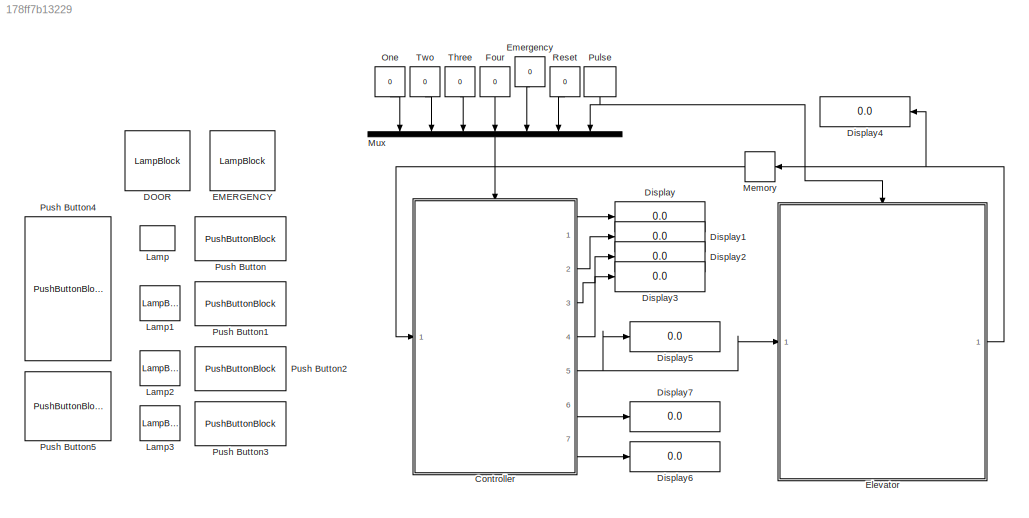
MODEL slx_178ff7b13229
KIND model
CONFIG AbsTol = auto
CONFIG EnableMultiTasking = off
CONFIG FixedStep = auto
CONFIG MaxStep = auto
CONFIG MinStep = auto
CONFIG RelTol = 1e-3
CONFIG SampleTimeConstraint = Unconstrained
CONFIG Solver = VariableStepAuto
CONFIG SolverName = VariableStepAuto
CONFIG StartTime = 0.0
CONFIG StopTime = inf
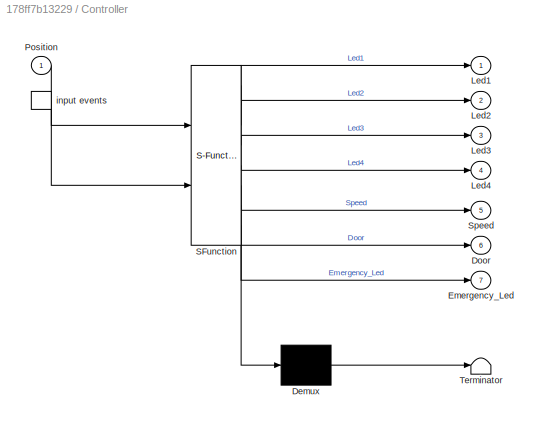
BLOCK [SubSystem] Controller
  ErrorFcn = Stateflow.Translate.translate
  PermitHierarchicalResolution = ExplicitOnly
  Ports = [1, 7, 0, 1]
  RequestExecContextInheritance = off
  SFBlockType = Chart
  TreatAsAtomicUnit = on
BLOCK [Demux] Controller/ Demux 
  Outputs = 1
  Ports = [1, 1]
BLOCK [S-Function] Controller/ SFunction 
  EnableBusSupport = on
  FunctionName = sf_sfun
  PortCounts = [2 8]
  Ports = [2, 8]
  SFcnIsStateOwnerBlock = off
  SFunctionDeploymentMode = off
  Tag = Stateflow S-Function 3
BLOCK [Terminator] Controller/ Terminator 
BLOCK [Outport] Controller/Door
  Port = 6
BLOCK [Outport] Controller/Emergency_Led
  Port = 7
BLOCK [Outport] Controller/Led1
BLOCK [Outport] Controller/Led2
  Port = 2
BLOCK [Outport] Controller/Led3
  Port = 3
BLOCK [Outport] Controller/Led4
  Port = 4
BLOCK [Inport] Controller/Position
BLOCK [Outport] Controller/Speed
  Port = 5
BLOCK [TriggerPort] Controller/input events
  Ports = [0, 1]
  ShowOutputPort = on
  StatesWhenEnabling = held
  VariantControl = (inherit)
BLOCK [LampBlock] DOOR
BLOCK [Display] Display
  Decimation = 1
  Ports = [1]
BLOCK [Display] Display1
  Decimation = 1
  Ports = [1]
BLOCK [Display] Display2
  Decimation = 1
  Ports = [1]
BLOCK [Display] Display3
  Decimation = 1
  Ports = [1]
BLOCK [Display] Display4
  Decimation = 1
  NameLocation = top
  Ports = [1]
BLOCK [Display] Display5
  Decimation = 1
  Ports = [1]
BLOCK [Display] Display6
  Decimation = 1
  Ports = [1]
BLOCK [Display] Display7
  Decimation = 1
  Ports = [1]
BLOCK [LampBlock] EMERGENCY
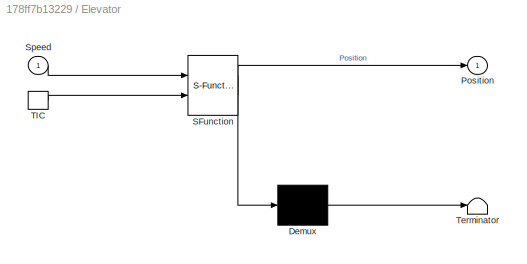
BLOCK [SubSystem] Elevator
  ErrorFcn = Stateflow.Translate.translate
  PermitHierarchicalResolution = ExplicitOnly
  Ports = [1, 1, 0, 1]
  RequestExecContextInheritance = off
  SFBlockType = Chart
  TreatAsAtomicUnit = on
BLOCK [Demux] Elevator/ Demux 
  Outputs = 1
  Ports = [1, 1]
BLOCK [S-Function] Elevator/ SFunction 
  EnableBusSupport = on
  FunctionName = sf_sfun
  PortCounts = [2 2]
  Ports = [2, 2]
  SFcnIsStateOwnerBlock = off
  SFunctionDeploymentMode = off
  Tag = Stateflow S-Function 1
BLOCK [Terminator] Elevator/ Terminator 
BLOCK [Outport] Elevator/Position
BLOCK [Inport] Elevator/Speed
BLOCK [TriggerPort] Elevator/TIC
  Ports = [0, 1]
  ShowOutputPort = on
  StatesWhenEnabling = held
  VariantControl = (inherit)
BLOCK [Constant] Emergency
  NameLocation = top
  Value = 0
BLOCK [Constant] Four
  NameLocation = top
  Value = 0
BLOCK [LampBlock] Lamp
BLOCK [LampBlock] Lamp1
BLOCK [LampBlock] Lamp2
BLOCK [LampBlock] Lamp3
BLOCK [Memory] Memory
  InitialCondition = 1
  NameLocation = top
BLOCK [Mux] Mux
  DisplayOption = bar
  Inputs = 7
  NameLocation = left
  Ports = [7, 1]
BLOCK [Constant] One
  NameLocation = top
  Value = 0
BLOCK [DiscretePulseGenerator] Pulse
  NameLocation = top
  Period = 10
  Ports = [0, 1]
  PulseType = Time based
  PulseWidth = 5
BLOCK [PushButtonBlock] Push Button
  ButtonText = One
BLOCK [PushButtonBlock] Push Button1
  ButtonText = Two
BLOCK [PushButtonBlock] Push Button2
  ButtonText = Three
BLOCK [PushButtonBlock] Push Button3
  ButtonText = Four
BLOCK [PushButtonBlock] Push Button4
  ButtonText = Emergency
BLOCK [PushButtonBlock] Push Button5
  ButtonText = Reset
BLOCK [Constant] Reset
  NameLocation = top
  Value = 0
BLOCK [Constant] Three
  NameLocation = top
  Value = 0
BLOCK [Constant] Two
  NameLocation = top
  Value = 0
LINE Controller:1 -> Display:1
LINE Controller:2 -> Display1:1
LINE Controller:3 -> Display2:1
LINE Controller:4 -> Display3:1
NET Controller:5 -> Display5:1, Elevator:1
LINE Controller:6 -> Display7:1
LINE Controller:7 -> Display6:1
NET Elevator:1 -> Display4:1, Memory:1
LINE Emergency:1 -> Mux:5
LINE Four:1 -> Mux:4
LINE Memory:1 -> Controller:1
LINE Mux:1 -> Controller:trigger
LINE One:1 -> Mux:1
NET Pulse:1 -> Elevator:trigger, Mux:7
LINE Reset:1 -> Mux:6
LINE Three:1 -> Mux:3
LINE Two:1 -> Mux:2
note: NET lines group one-source signal fan-out (src -> all destinations, sorted); 1:1 wires keep LINE
CHART Elevator states=4 transitions=7
  STATE_LABEL 'One\nen:Position=1;ml.lift_move(fig,Position);'
  STATE_LABEL 'Two\nen:Position=2;ml.lift_move(fig,Position);'
  STATE_LABEL 'Three\nen:Position=3;ml.lift_move(fig,Position);'
  STATE_LABEL 'Four\nen:Position=4;ml.lift_move(fig,Position);'
CHART Controller states=16 transitions=37
  STATE_LABEL 'Init\nen:Led1=0;Led2=0;Led3=0;Led4=0;Door=0;'
  STATE_LABEL 'Emergency6\nen:Emergency_Led=1;'
  STATE_LABEL 'First_Floor\nen:Speed=-0.2;\non One: Led1=1;\non Two: Led2=1;\non Three:Led3=1;\non Four:Led4=1;'
  STATE_LABEL 'Fourth_Floor\nen:Speed=0.2;\non One: Led1=1;\non Two: Led2=1;\non Three:Led3=1;\non Four:Led4=1;'
  STATE_LABEL 'Entry\nen:Speed=0;\non One: Led1=1;\non Two: Led2=1;\non Three:Led3=1;\non Four:Led4=1;\n'
  STATE_LABEL 'Emergency5\nen:Emergency_Led=1;'
  STATE_LABEL 'Emergency\nen:Emergency_Led=1;'
  STATE_LABEL 'Door\nen:Door=1;\non One: Led1=1;\non Two: Led2=1;\non Three:Led3=1;\non Four:Led4=1;'
  STATE_LABEL 'Second_Floor1\nen:Speed=0.2\non One: Led1=1;\non Two: Led2=1;\non Three:Led3=1;\non Four:Led4=1;'
  STATE_LABEL 'Third_Floor1_\nen:Speed=-0.2;\non One: Led1=1;\non Two: Led2=1;\non Three:Led3=1;\non Four:Led4=1;'
  STATE_LABEL 'Third_Floor\nen:Speed=0.2;\non One: Led1=1;\non Two: Led2=1;\non Three:Led3=1;\non Four:Led4=1;'
  STATE_LABEL 'Emergency3\nen:Emergency_Led=1;'
  STATE_LABEL 'Emergency1\nen:Emergency_Led=1;'
  STATE_LABEL 'Emergency4\nen:Emergency_Led=1;'
  STATE_LABEL 'Second_Floor\nen:Speed=-0.2;\non One: Led1=1;\non Two: Led2=1;\non Three:Led3=1;\non Four:Led4=1;'
  STATE_LABEL 'Emergency2\nen:Emergency_Led=1;'
CHART  states=0 transitions=0
CHART  states=0 transitions=0
